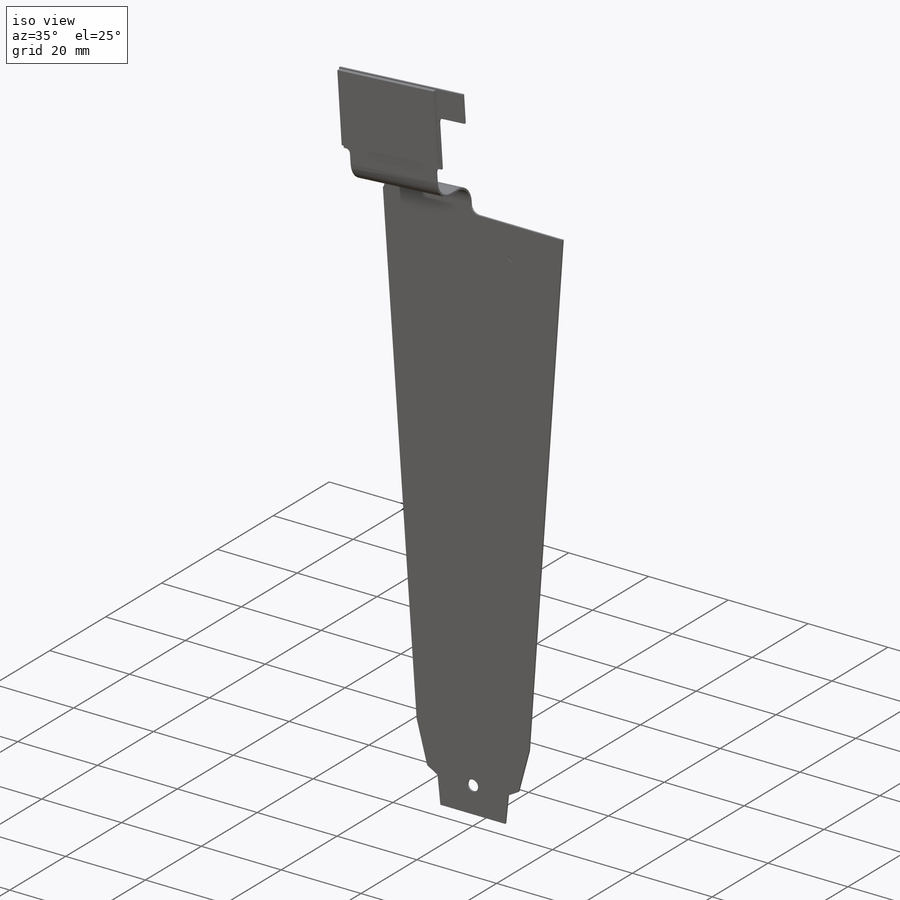
[diagram: iso view]
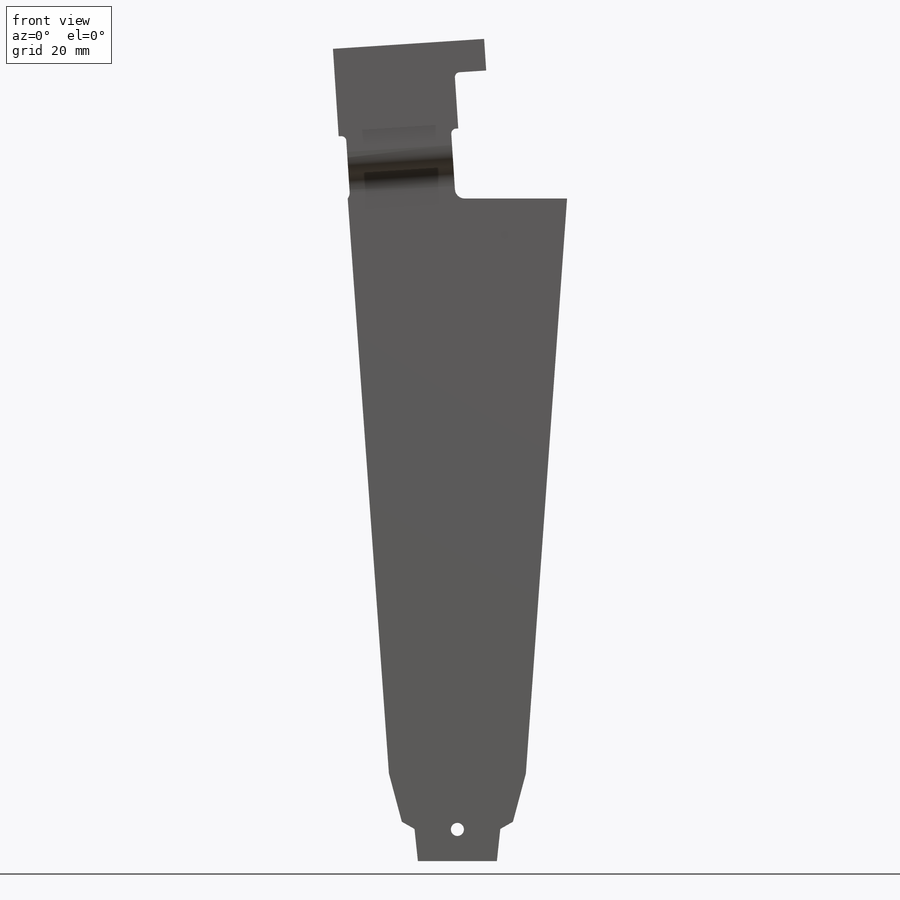
[diagram: front view]
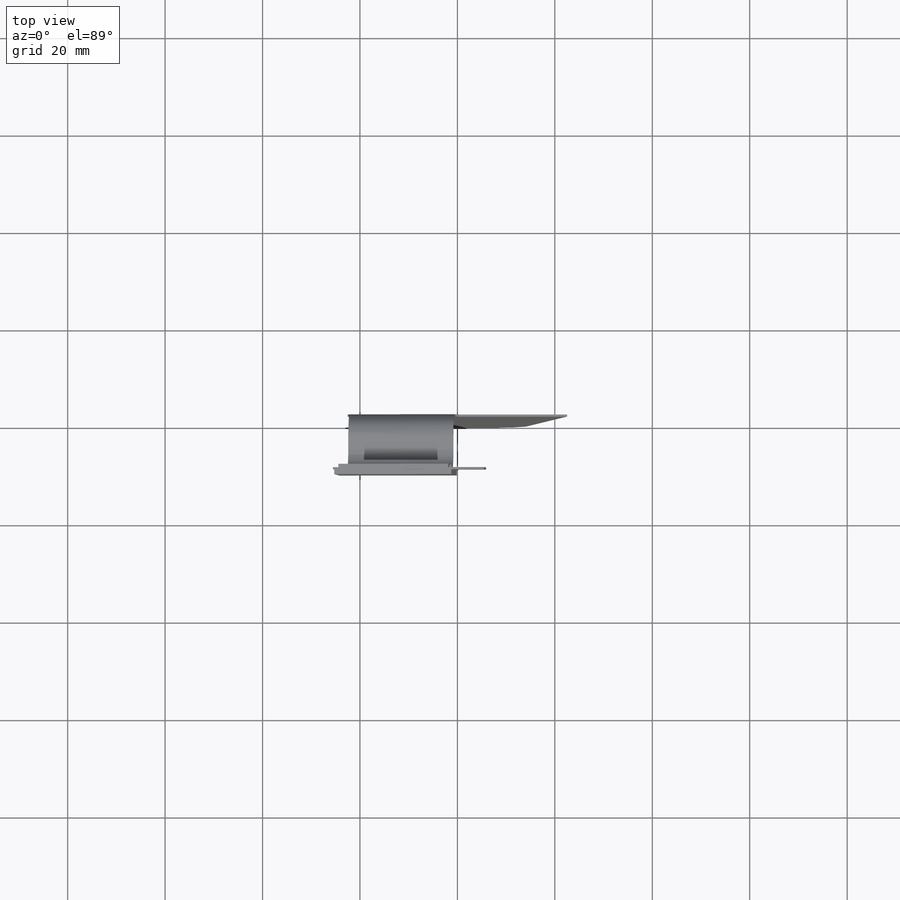
[diagram: top view]
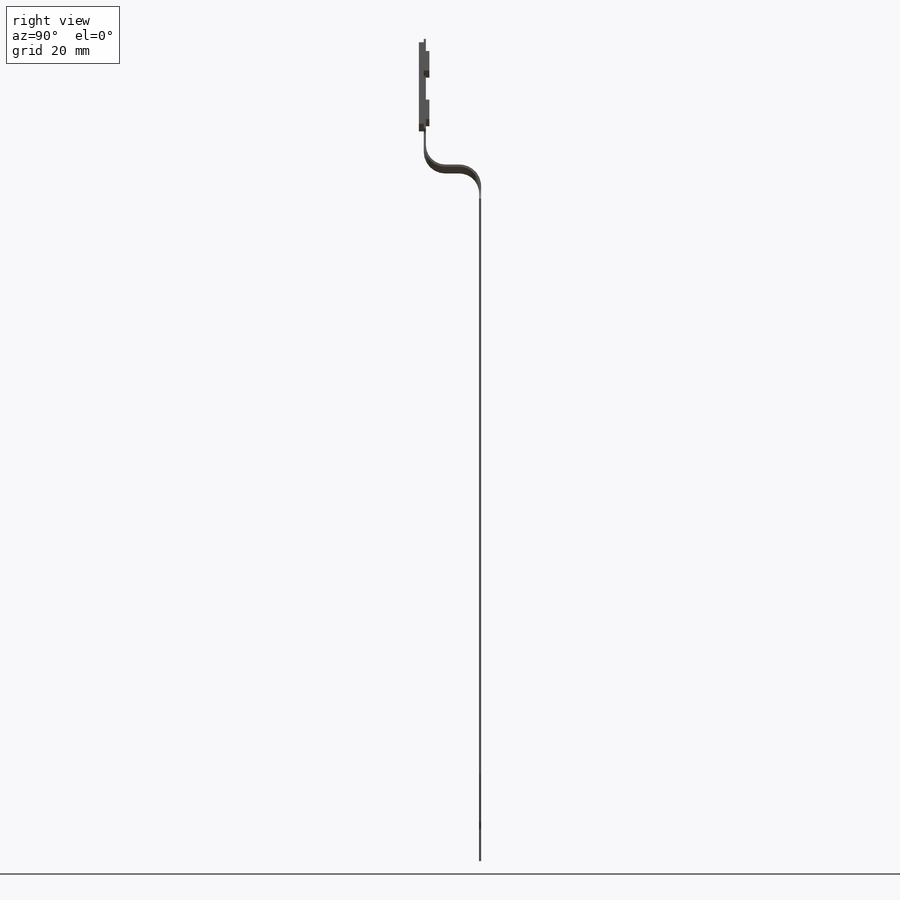
[diagram: right view]
SOLIDWORKS PART (.sldprt)
format: sldprt  version: not decoded by parser v0  size: 5,800,448 bytes
history: native  units: mm
features: sketch x17, extrude x7, cut_extrude x5, plane x4, sheet_metal_op x2, material x1, fillet x1 + 4 further entries (+12 scaffold rows collapsed; 1 parser-record rows omitted)
feature tree (54):
  scaffold x12  (default folders/planes/origin — collapsed)
  material  "Material <not specified>"
  plane  "Plane1"
  plane  "Plane2"
  plane  "Plane3"
  sketch  "Sketch1"  dims[c1.D6=2.0mm c1.D9=1.0mm c1.D1=6.6mm c1.D2=24.2mm c1.D3=134.0mm c1.D4=0.5mm c1.D5=0.5mm c2.D6=0.5mm c2.D7=70.0mm c2.D5=0.5mm c2.D8=3.0mm c2.D1=4.5mm c2.D2=3.0mm c2.D3=~68.346004mm c3.D1=~68.346004mm c4.D1=11.25deg c4.D4=~34.742929mm c4.D3=170.0mm c5.D4=135.0mm c5.D1=135.0mm c6.D1=15.0deg c6.D2=135.0mm c6.D3=170.0mm c7.D1=110.0mm c8.D1=15.0deg c8.D4=110.0mm c9.D4=3.75deg c9.D5=4.0mm c9.D2=~135.289666mm c9.D3=~170.673817mm c9.D6=170.0mm c9.D1=35.0mm c10.D2=~115.605331mm c11.D2=15.0deg c11.D3=170.0mm c11.D4=5.0mm c12.D3=171.0mm c12.D4=23.0mm c12.D5=33.0mm c13.D4=21.6mm c13.D7=~134.546711mm c14.D7=3.75deg c14.D8=~134.546711mm c15.D8=7.5deg c15.D9=2.0mm c15.D10=3.5mm c15.D5=26.5mm c15.D11=~12.680345mm c15.D12=3.5mm c15.D13=5.0mm c15.D14=0.635mm c15.D15=2.5mm c15.D16=2.54mm c15.D17=18.5mm c15.D18=4.0mm c16.D11=~9.680345mm c16.D9=~17.973426mm c17.D9=15.0deg c17.D11=~12.715675mm]
  extrude  "Extrude1"  Depth=0.44mm Thickness=0.44mm
  plane  "Plane4"
  sketch  "Sketch25"  dims[c1.D1=1.5mm c1.D2=~9.680345mm c1.D3=7.5mm c2.D2=7.5mm c2.D3=~9.680345mm]
  cut_extrude  "Extrude10"  Depth=0.088mm
  sketch  "Sketch27"  dims[c1.D5=1.0mm c1.D1=~9.353117mm c2.D1=~12.092134deg c2.D2=~45.196685mm c2.D3=~3.229742mm c3.D3=75.0deg c3.D4=3.0mm c3.D2=~45.196685mm c3.D1=~16.215675mm c4.D2=~6.71056mm c5.D2=~12.092134deg c5.D3=~2.104202mm c5.D4=~44.562066mm]
  cut_extrude  "Extrude12"  [1 undecoded]
  sketch  "Sketch26"  dims[c1.D2=3.0508mm c1.D3=~0.396875mm c1.D1=5.0mm c2.D3=1.0mm c2.D4=6.0mm c2.D5=6.0mm c2.D6=5.0mm c3.D4=9.5mm c3.D7=~9.680345mm c3.D8=3.0mm]
  extrude  "Extrude11"  [1 undecoded]
  sketch  "Sketch19"  dims[D1=1.5mm D2=18.0mm D3=6.5mm]
  extrude  "Extrude4"  [1 undecoded]
  sketch  "Sketch30"  dims[D1=1.5mm D2=1.0mm D3=1.0mm D4=1.0mm D5=3.1mm D6=3.1mm D7=3.0mm D8=2.8mm D9=1.2mm D10=~1.262945mm]
  cut_extrude  "Extrude15"  Depth=0.005mm
  fillet  "Fillet1"  Radius=1mm
  sketch  "Sketch16"  dims[c1.D1=2.0mm c1.D2=1.0mm c1.D3=1.0mm c1.D4=10.0mm c1.D5=4.0mm c2.D2=22.6mm]
  extrude  "Extrude2"  Depth=0.725mm
  sketch  "Sketch28"  dims[c1.D5=0.3mm c1.D6=0.05mm c1.D1=2.36mm c1.D2=0.15mm c1.D3=0.15mm c1.D4=~0.207596mm c2.D4=~40.06758deg c2.D7=0.1mm c2.D2=0.575mm]
  cut_extrude  "Extrude13"  [1 undecoded]
  sketch  "Sketch17"  dims[c1.D1=4.0mm c1.D2=~15.499873mm c2.D2=0.2deg c2.D3=10.0mm c2.D4=~3.990498mm c3.D4=179.8deg c3.D2=2.0mm c4.D4=1.0mm c4.D5=1.0mm]
  extrude  "Extrude3"  Depth=0.725mm
  sheet_metal_op  "Sheet-Metal2"
  sketch  "Sharp-Sketch2"  dims[D1=0.0mm]
  sketch  "Flat-Sketch2"  dims[D1=0.0mm]
  sketch  "Sketch13"  dims[c1.D1=2.6924mm c1.D2=3.556mm c1.D3=3.556mm c1.D4=~0.79375mm c1.D5=1.5875mm c1.D6=2.6924mm c1.D7=2.6924mm c1.D8=2.6924mm c1.D9=2.6924mm c1.D10=2.6924mm c2.D6=2.6924mm c2.D7=1.5875mm c2.D8=2.6924mm c2.D9=~165.073514mm c3.D8=2.6924mm c3.D6=2.6924mm c4.D8=1.5875mm c4.D9=2.6924mm c4.D5=1.5875mm c4.D7=~1.59258mm c4.D10=2.6924mm c4.D14=2.6924mm c4.D3=6.5mm c5.D5=4.0mm c5.D6=3.5mm c5.D7=132.0mm c5.D8=~40.200723mm c5.D9=2.0mm c5.D10=3.0mm c6.D6=13.0mm c6.D7=1.5mm c6.D8=~4.376152mm c7.D6=~165.307588mm c7.D8=~157.767264mm c7.D7=1.5mm c7.D9=0.25mm c7.D5=37.5mm c8.D7=18.0mm c8.D9=18.0mm c8.D6=165.0mm c8.D8=156.5mm c9.D6=~170.227382mm c9.D8=~157.767264mm c9.D7=17.5mm c9.D10=~4.305579mm c9.D11=~3.488371mm c9.D12=~1.726962mm c9.D13=~14.206316mm c9.D14=18.0mm c10.D6=161.0mm]
  cut_extrude  "Cut-Extrude1"  [1 undecoded]
  sketch  "Sketch14"  dims[c1.D1=3.0mm c2.D1=3.0mm c2.D4=45.0deg c2.D5=1.0 c2.D8=0.088mm c2.D9=0.088mm c2.JogBend2=0.0 c3.D1=3.0mm c3.D4=45.0deg c3.D5=2.0 c3.D8=0.088mm c3.D9=0.088mm c4.D1=3.0mm c4.D2=500.0mm c4.D3=0.0mm c5.D2=3.938mm c5.D3=45.0deg]
  sketch  "Sketch18"  dims[D1=4.0mm]
  sheet_metal_op  "Jog2"  JogBend3=0 JogBend4=0
  "Flat-Pattern2"
  sketch  "Bend-Lines2"
  "Flatten-<JogBend2>1"
  "Flatten-<JogBend3>1"
  "Flatten-<JogBend4>1"
  parser-record x1  (decoder bookkeeping rows leaked as tree rows — omitted from the tree; the rows remain in map.json)
  sketch  "Sketch21"  dims[c1.D2=27.5mm c1.D4=0.25mm c1.D5=0.25mm c1.D1=0.25mm c1.D6=0.25mm c1.D7=0.25mm c2.D5=0.25mm c2.D8=0.25mm c2.D9=0.25mm c2.D1=0.25mm c2.D2=0.25mm c2.D3=17.5mm c2.D4=0.25mm c3.D1=0.25mm c3.D3=0.25mm c4.D1=0.25mm]
  extrude  "Extrude6"  Depth=1mm
  sketch  "Sketch23"  dims[c1.D3=27.5mm c1.D2=0.25mm c2.D3=13.562mm c2.D1=16.75mm c2.D2=0.25mm c3.D3=0.25mm c3.D4=0.25mm c3.D1=0.25mm c3.D2=0.25mm c4.D1=0.25mm]
  extrude  "Extrude8"  Depth=1mm
decode coverage: 25 of 32 modeling features carry decoded parameters; 4 rows unclassified (native names shown)
note: ~ marks probable driven/reference dimensions
note: 5 parameter values undecoded
summary: no parameter record found for 5 features
note: suppression state not decoded; provenance and decode notes live in map.json
